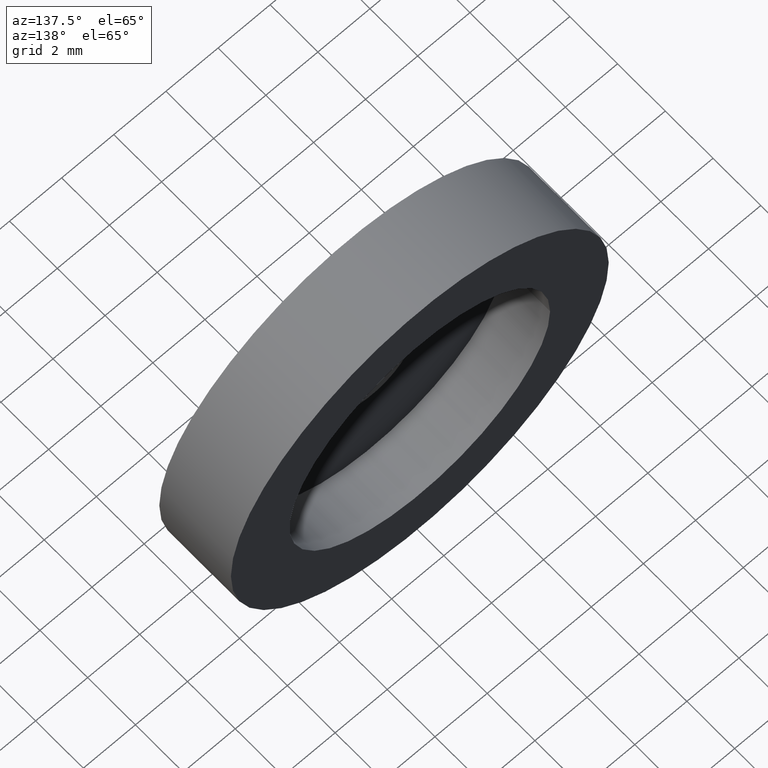
[diagram: clean part render]
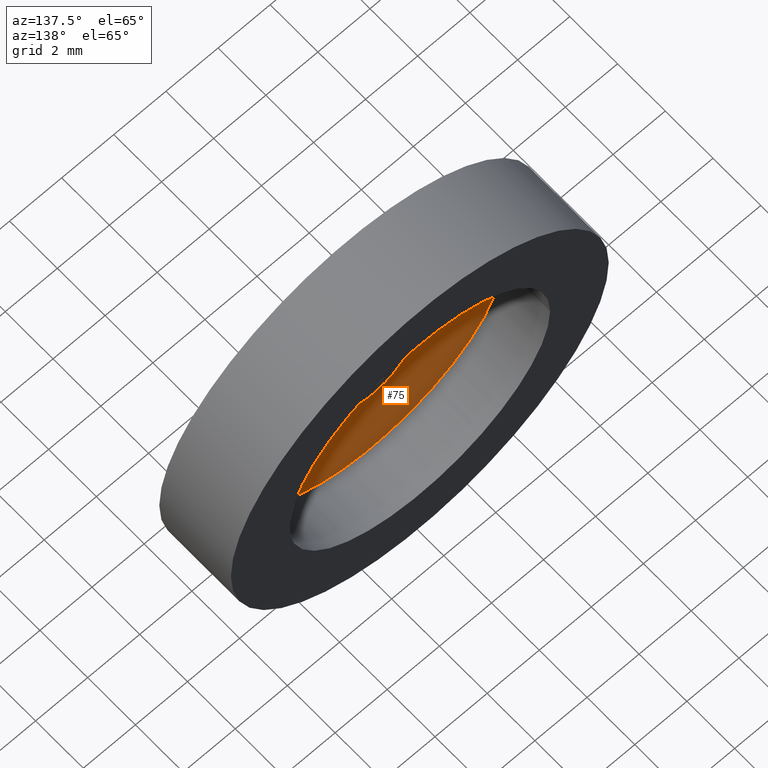
[diagram: same view with one face highlighted and labeled with its STEP entity id]
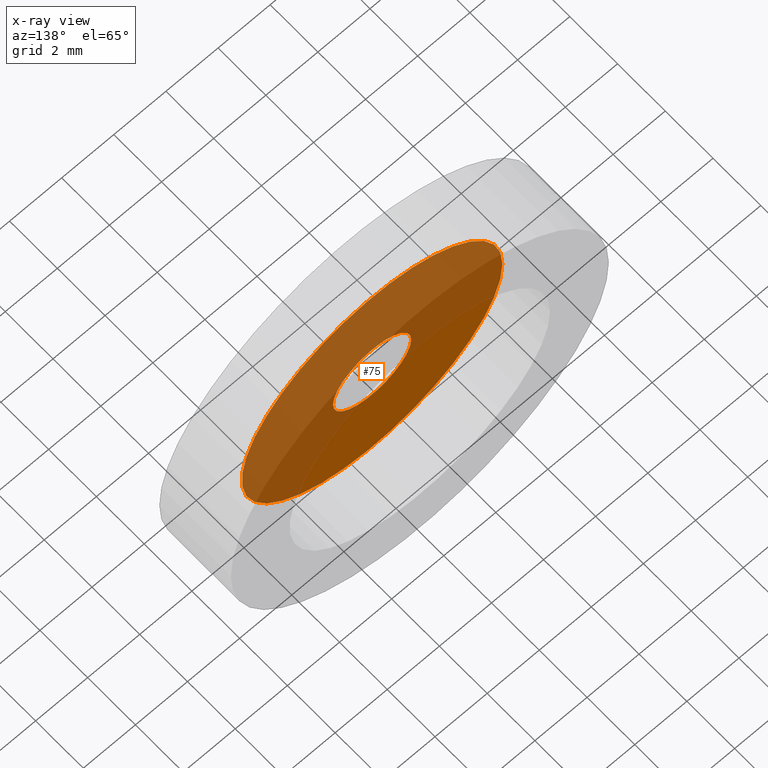
[diagram: x-ray of the same camera — body ghosted, the highlighted face saturated]
A machine part, auxiliary view. The second image highlights one B-rep face of the part: STEP entity #75.
The next image is the same camera in x-ray: the body ghosted, the highlighted face saturated — about 71% of this face is hidden behind the body in this view.
In plain terms, the highlighted planar face has unit normal (0, 1, 0).
Its self-contained STEP definition (entity closure, byte-faithful):
#18=FACE_BOUND('',#31,.T.);
#24=FACE_OUTER_BOUND('',#30,.T.);
#30=EDGE_LOOP('',(#60));
#31=EDGE_LOOP('',(#61));
#42=CIRCLE('',#84,5.);
#43=CIRCLE('',#85,1.5);
#48=VERTEX_POINT('',#123);
#49=VERTEX_POINT('',#125);
#54=EDGE_CURVE('',#48,#48,#42,.T.);
#55=EDGE_CURVE('',#49,#49,#43,.T.);
#60=ORIENTED_EDGE('',*,*,#54,.T.);
#61=ORIENTED_EDGE('',*,*,#55,.F.);
#72=PLANE('',#83);
#75=ADVANCED_FACE('',(#24,#18),#72,.T.);
#83=AXIS2_PLACEMENT_3D('',#122,#97,#98);
#84=AXIS2_PLACEMENT_3D('',#124,#99,#100);
#85=AXIS2_PLACEMENT_3D('',#126,#101,#102);
#97=DIRECTION('center_axis',(0.,1.,0.));
#98=DIRECTION('ref_axis',(-1.,0.,0.));
#99=DIRECTION('center_axis',(0.,1.,0.));
#100=DIRECTION('ref_axis',(-1.,0.,0.));
#101=DIRECTION('center_axis',(0.,1.,0.));
#102=DIRECTION('ref_axis',(-1.,0.,0.));
#122=CARTESIAN_POINT('Origin',(0.,1.,0.));
#123=CARTESIAN_POINT('',(-5.,1.,0.));
#124=CARTESIAN_POINT('Origin',(0.,1.,0.));
#125=CARTESIAN_POINT('',(1.5,1.,-1.83697019872103E-16));
#126=CARTESIAN_POINT('Origin',(0.,1.,0.));